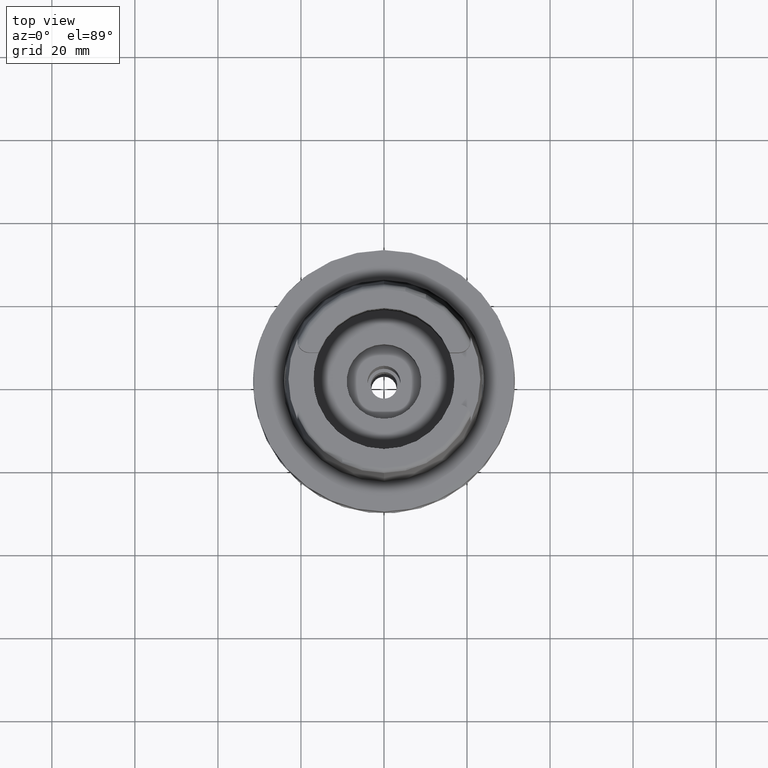
[diagram: clean part render]
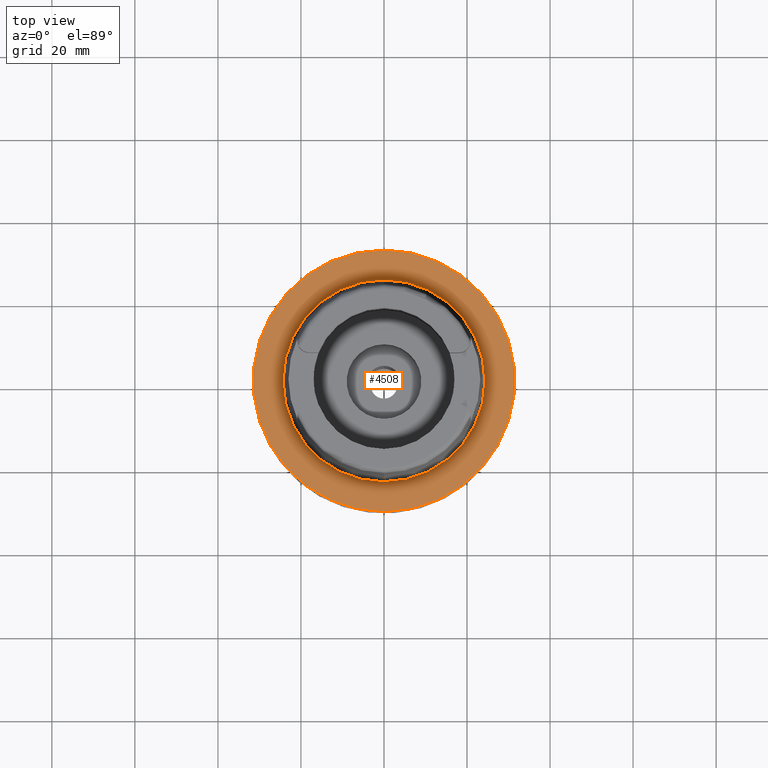
[diagram: same view with one face highlighted and labeled with its STEP entity id]
A machine part, top view. The second image highlights one B-rep face of the part: STEP entity #4508.
In plain terms, the highlighted planar face has unit normal (0, 0, -1).
Its self-contained STEP definition (entity closure, byte-faithful):
#32 = AXIS2_PLACEMENT_3D ( 'NONE', #4434, #4000, #4483 ) ;
#120 = EDGE_LOOP ( 'NONE', ( #962, #2278 ) ) ;
#288 = CARTESIAN_POINT ( 'NONE',  ( 0.0000000000000000000, 0.0000000000000000000, 0.0000000000000000000 ) ) ;
#377 = EDGE_CURVE ( 'NONE', #4577, #1029, #3528, .T. ) ;
#439 = DIRECTION ( 'NONE',  ( 0.0000000000000000000, -1.000000000000000000, 0.0000000000000000000 ) ) ;
#590 = EDGE_LOOP ( 'NONE', ( #1758, #1897 ) ) ;
#639 = CARTESIAN_POINT ( 'NONE',  ( 0.0000000000000000000, 0.0000000000000000000, 1.136868377215999875E-13 ) ) ;
#726 = CARTESIAN_POINT ( 'NONE',  ( 0.0000000000000000000, -31.50000000000000000, -8.526512829120999020E-14 ) ) ;
#816 = CARTESIAN_POINT ( 'NONE',  ( 0.0000000000000000000, 0.0000000000000000000, 1.136868377215999875E-13 ) ) ;
#823 = CIRCLE ( 'NONE', #3090, 24.31503482328999866 ) ;
#903 = CARTESIAN_POINT ( 'NONE',  ( 0.0000000000000000000, 0.0000000000000000000, -8.526512829120999020E-14 ) ) ;
#962 = ORIENTED_EDGE ( 'NONE', *, *, #1907, .F. ) ;
#1029 = VERTEX_POINT ( 'NONE', #4250 ) ;
#1342 = DIRECTION ( 'NONE',  ( 0.0000000000000000000, 0.0000000000000000000, 1.000000000000000000 ) ) ;
#1621 = DIRECTION ( 'NONE',  ( 0.0000000000000000000, 0.0000000000000000000, -1.000000000000000000 ) ) ;
#1758 = ORIENTED_EDGE ( 'NONE', *, *, #4178, .F. ) ;
#1813 = EDGE_CURVE ( 'NONE', #3577, #2324, #823, .T. ) ;
#1897 = ORIENTED_EDGE ( 'NONE', *, *, #1813, .F. ) ;
#1898 = CARTESIAN_POINT ( 'NONE',  ( 0.0000000000000000000, 24.31503482328999866, 1.136868377215999875E-13 ) ) ;
#1907 = EDGE_CURVE ( 'NONE', #1029, #4577, #2560, .T. ) ;
#1924 = AXIS2_PLACEMENT_3D ( 'NONE', #816, #3360, #4585 ) ;
#2278 = ORIENTED_EDGE ( 'NONE', *, *, #377, .F. ) ;
#2324 = VERTEX_POINT ( 'NONE', #1898 ) ;
#2364 = PLANE ( 'NONE',  #4374 ) ;
#2560 = CIRCLE ( 'NONE', #32, 31.50000000000000000 ) ;
#2717 = DIRECTION ( 'NONE',  ( 0.0000000000000000000, -1.000000000000000000, 0.0000000000000000000 ) ) ;
#2811 = FACE_OUTER_BOUND ( 'NONE', #120, .T. ) ;
#3090 = AXIS2_PLACEMENT_3D ( 'NONE', #639, #1342, #2717 ) ;
#3360 = DIRECTION ( 'NONE',  ( 0.0000000000000000000, 0.0000000000000000000, 1.000000000000000000 ) ) ;
#3528 = CIRCLE ( 'NONE', #4206, 31.50000000000000000 ) ;
#3577 = VERTEX_POINT ( 'NONE', #5175 ) ;
#3962 = DIRECTION ( 'NONE',  ( 0.0000000000000000000, -1.000000000000000000, 0.0000000000000000000 ) ) ;
#4000 = DIRECTION ( 'NONE',  ( 0.0000000000000000000, 0.0000000000000000000, -1.000000000000000000 ) ) ;
#4178 = EDGE_CURVE ( 'NONE', #2324, #3577, #4805, .T. ) ;
#4206 = AXIS2_PLACEMENT_3D ( 'NONE', #903, #1621, #439 ) ;
#4250 = CARTESIAN_POINT ( 'NONE',  ( 0.0000000000000000000, 31.50000000000000000, -8.526512829120999020E-14 ) ) ;
#4366 = DIRECTION ( 'NONE',  ( 0.0000000000000000000, 0.0000000000000000000, -1.000000000000000000 ) ) ;
#4374 = AXIS2_PLACEMENT_3D ( 'NONE', #288, #4366, #3962 ) ;
#4434 = CARTESIAN_POINT ( 'NONE',  ( 0.0000000000000000000, 0.0000000000000000000, -8.526512829120999020E-14 ) ) ;
#4483 = DIRECTION ( 'NONE',  ( 0.0000000000000000000, 1.000000000000000000, 0.0000000000000000000 ) ) ;
#4508 = ADVANCED_FACE ( 'NONE', ( #2811, #5331 ), #2364, .F. ) ;
#4577 = VERTEX_POINT ( 'NONE', #726 ) ;
#4585 = DIRECTION ( 'NONE',  ( 0.0000000000000000000, 1.000000000000000000, 0.0000000000000000000 ) ) ;
#4805 = CIRCLE ( 'NONE', #1924, 24.31503482328999866 ) ;
#5175 = CARTESIAN_POINT ( 'NONE',  ( 0.0000000000000000000, -24.31503482328999866, 1.882938249763999678E-13 ) ) ;
#5331 = FACE_BOUND ( 'NONE', #590, .T. ) ;